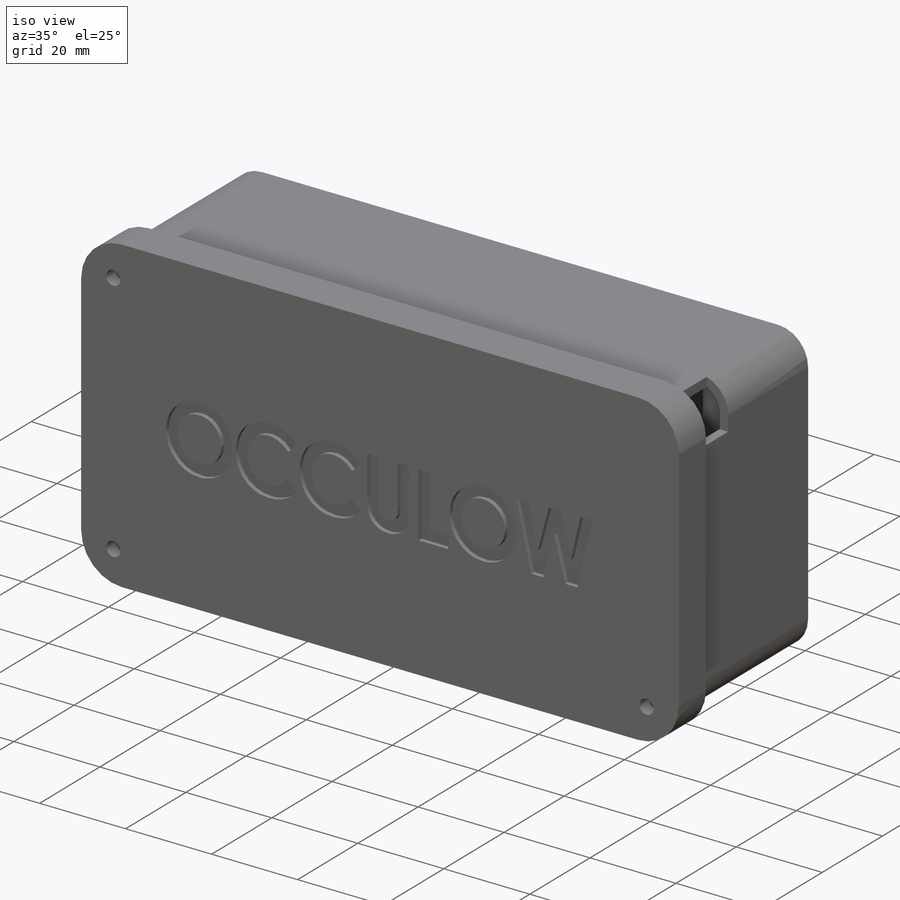
[diagram: iso view]
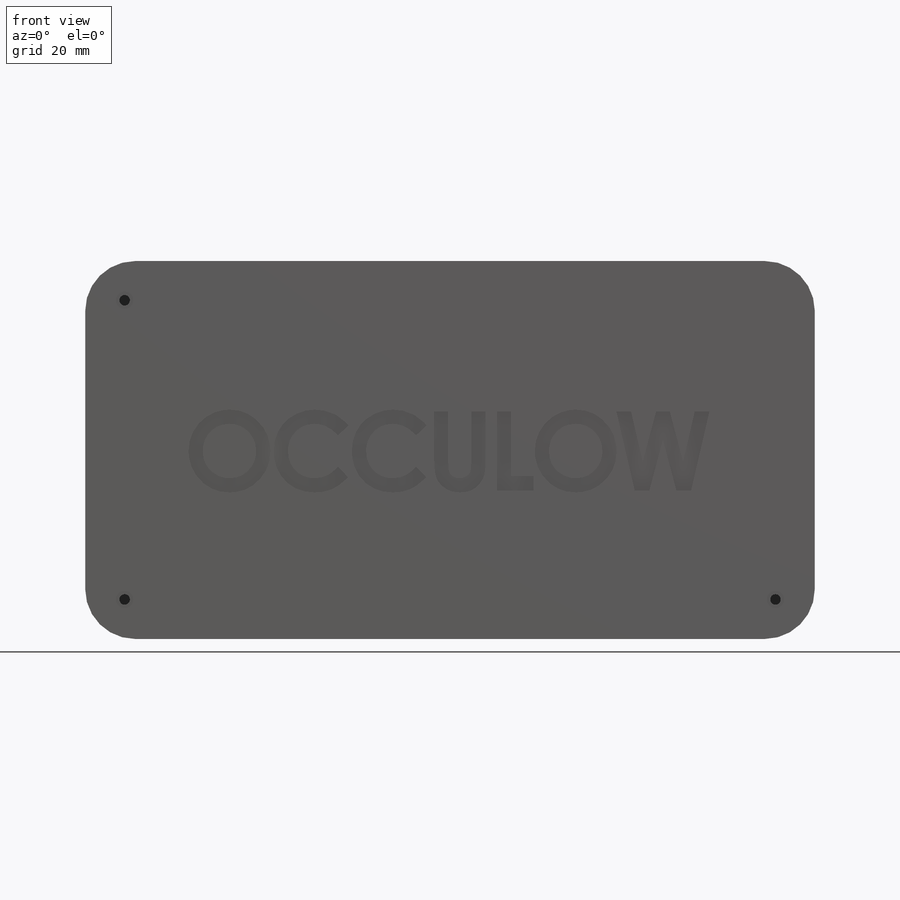
[diagram: front view]
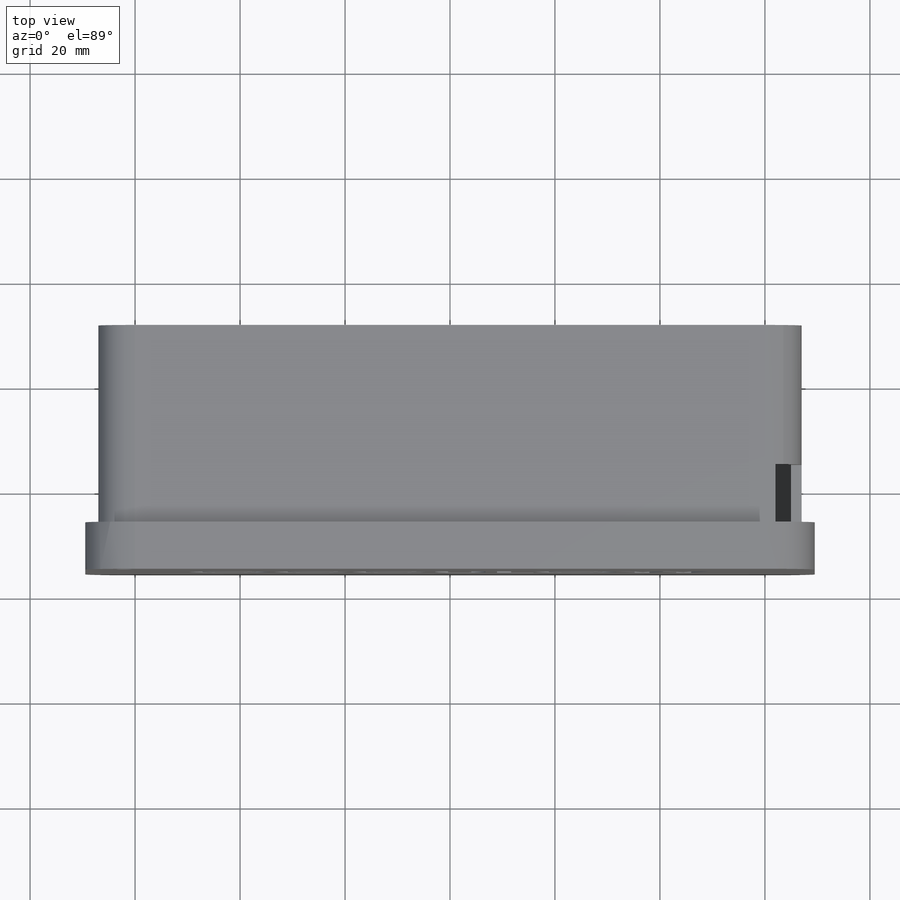
[diagram: top view]
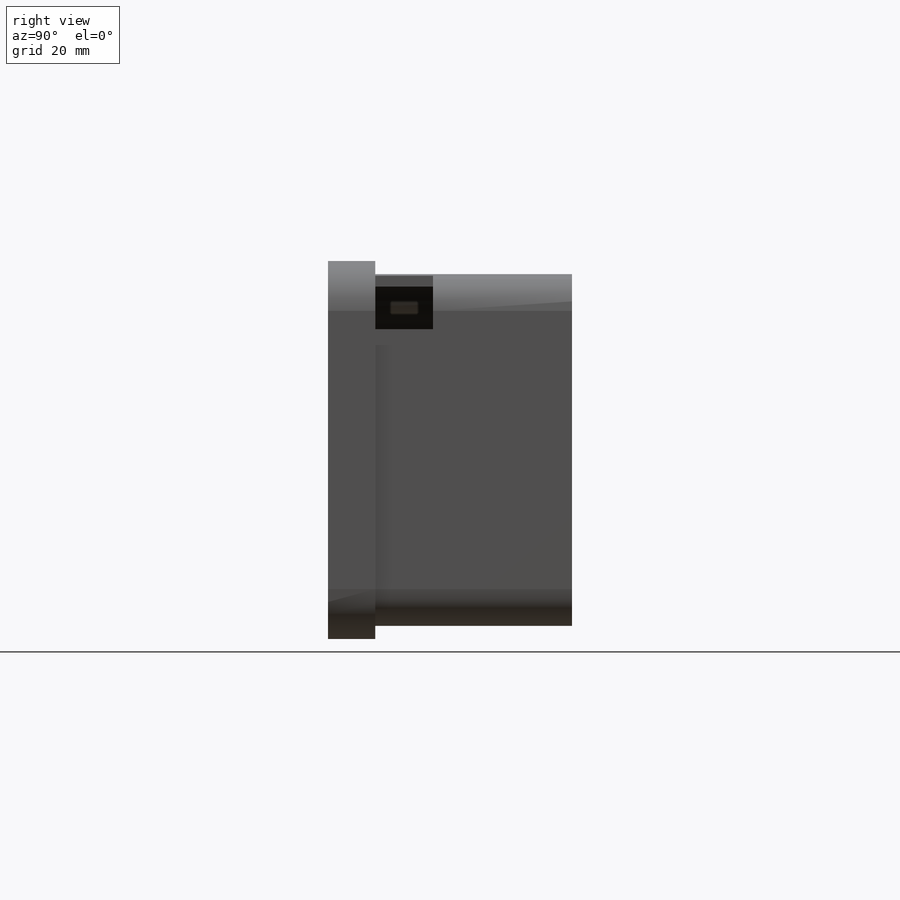
[diagram: right view]
SOLIDWORKS PART (.sldprt)
format: sldprt  version: not decoded by parser v0  size: 723,456 bytes
history: native  units: mm
features: sketch x15, extrude x12, cut_extrude x3, fillet x3, material x1 (+13 scaffold rows collapsed)
feature tree (47):
  scaffold x13  (default folders/planes/origin — collapsed)
  material  "Material <not specified>"
  sketch  "Sketch1"  dims[D1=11.0mm D2=10.0mm D3=7.0mm D4=15.0mm D5=130.0mm D6=40.0mm]
  extrude  "Boss-Extrude1"  Depth=2mm
  sketch  "Sketch2"  dims[D4=2.0mm D1=30.0mm D2=42.0mm D3=65.0mm D5=30.0mm D6=7.0mm D7=20.0mm D8=30.0mm]
  extrude  "Boss-Extrude2"  Depth=3.5mm
  sketch  "Sketch4"  dims[D1=2.5mm]
  extrude  "Boss-Extrude3"  Depth=2.5mm
  sketch  "Sketch5"
  extrude  "Boss-Extrude4"  Depth=2mm
  sketch  "Sketch6"  dims[c1.D1=6.5mm c1.D2=2.0mm c1.D3=3.0mm c1.D4=5.0mm c1.D5=15.0mm c1.D6=51.0mm c2.D5=50.0mm]
  extrude  "Boss-Extrude5"  [1 undecoded]
  sketch  "Sketch7"
  extrude  "Boss-Extrude6"  Depth=2mm
  sketch  "Sketch8"
  extrude  "Boss-Extrude7"  Depth=2mm
  sketch  "Sketch12"
  extrude  "Boss-Extrude10"  Depth=25mm
  sketch  "Sketch9"  dims[D1=10.5mm D2=3.0mm]
  cut_extrude  "Cut-Extrude1"  Depth=8mm
  sketch  "Sketch10"  dims[c1.D1=13.5mm c1.D2=9.4mm c1.D3=3.0mm c1.D4=~6.46827mm c2.D4=45.0deg c2.D5=5.0mm]
  extrude  "Boss-Extrude8"  Depth=18mm
  sketch  "Sketch11"  dims[c1.D1=~15.231743mm c2.D1=45.0deg c2.D2=42.0mm c2.D3=5.0mm c2.D4=36.5mm c2.D5=3.0mm]
  extrude  "Boss-Extrude9"  [1 undecoded]
  sketch  "Sketch13"  dims[D5=2.0mm D1=5.0mm D2=5.0mm D3=5.0mm D4=5.0mm]
  cut_extrude  "Cut-Extrude2"  Depth=25mm
  fillet  "Fillet1"  Radius=5mm
  fillet  "Fillet2"  Radius=7mm
  fillet  "Fillet3"  Radius=1mm
  sketch  "Sketch14"  dims[D1=0.0mm D2=2.5mm D3=0.5mm]
  extrude  "Boss-Extrude11"  Depth=6mm
  sketch  "Sketch15"  dims[c1.D2=3.3mm c1.D1=0.0mm c2.D2=0.0mm c2.D3=0.0mm c2.D4=0.0mm]
  extrude  "Boss-Extrude12"  Depth=3mm
  sketch  "Sketch16"
  cut_extrude  "Cut-Extrude3"  Depth=1mm
decode coverage: 26 of 33 modeling features carry decoded parameters
note: ~ marks probable driven/reference dimensions
note: 2 parameter values undecoded
note: suppression state not decoded; provenance and decode notes live in map.json
